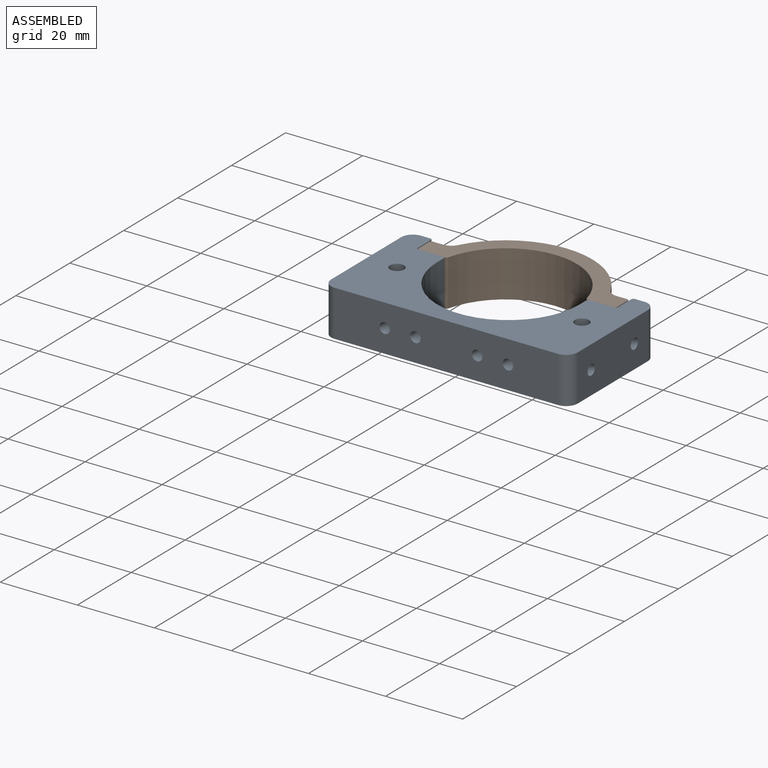
[diagram: assembled view]
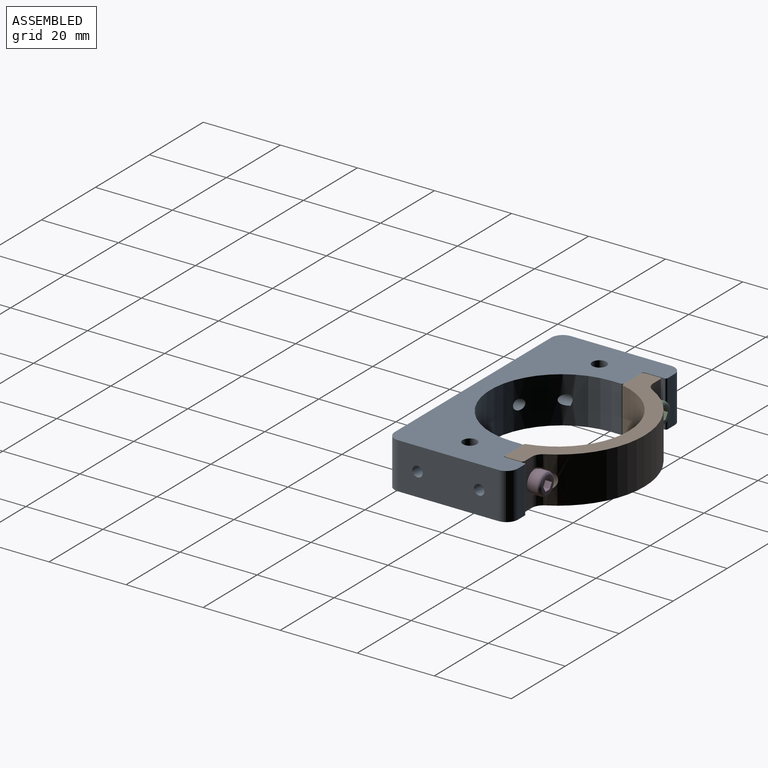
[diagram: assembled view, second angle]
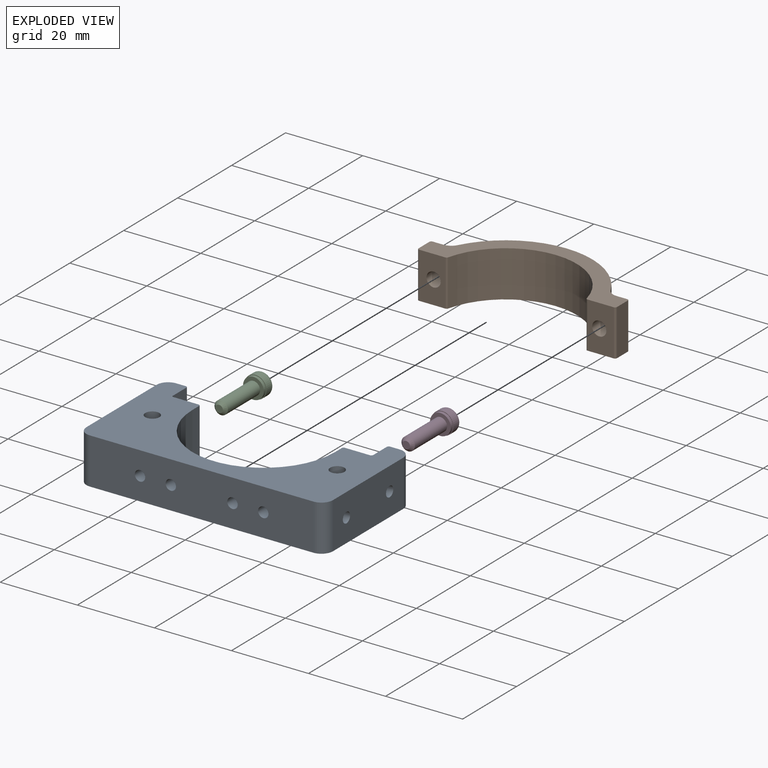
[diagram: exploded view]
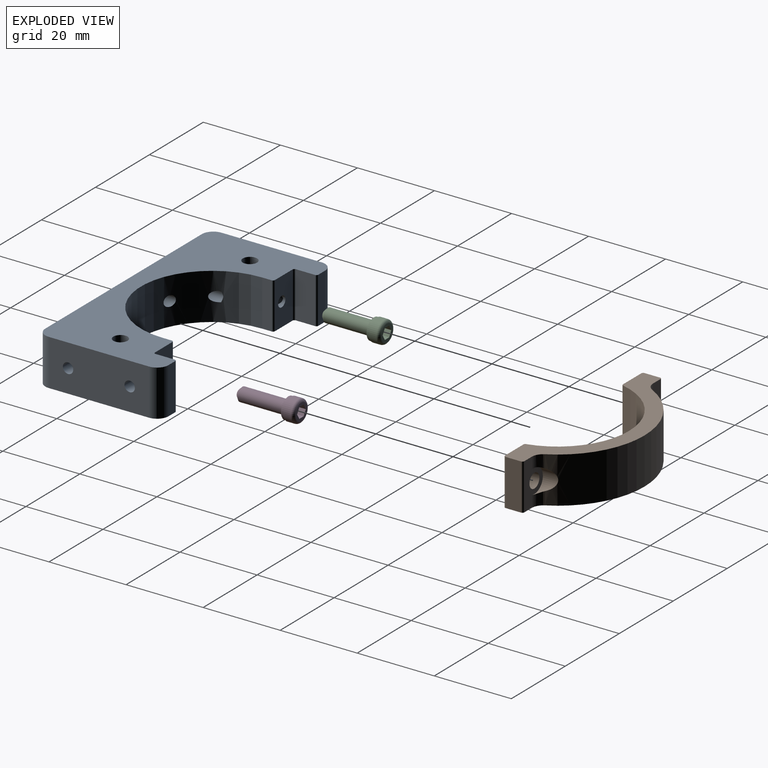
[diagram: exploded view, second angle]
ASSEMBLY  parts=4 mates=3
PART A: 42 faces, bbox 64x32x12 mm
  f0: cone r=1.35mm half-angle=67.5deg, axis (0,1,0), area 6.2mm2, adj f1
  f1: cylinder r=1.35mm len=12mm, axis (0,1,0), area 88mm2, adj f0,f11,f14,f33
  f2: cone r=1.35mm half-angle=67.5deg, axis (0,1,0), area 6.2mm2, adj f3
  f3: cylinder r=1.35mm len=12mm, axis (0,1,0), area 88mm2, adj f2,f8,f15,f30
  f4: cylinder r=1.35mm len=14mm, axis (0,-1,0), area 112.1mm2, adj f20,f23,f25
  f5: cylinder r=1.35mm len=6.32mm, axis (0,-1,0), area 53.7mm2, adj f20,f23
  f6: cylinder r=1.35mm len=6.32mm, axis (0,-1,0), area 53.7mm2, adj f20,f23
  f7: cylinder r=1.35mm len=14mm, axis (0,-1,0), area 112.1mm2, adj f20,f23,f24
  f8: cylinder r=1.35mm len=10.5mm, axis (1,0,0), area 81.9mm2, adj f3,f21
  f9: cylinder r=1.35mm len=10.5mm, axis (1,0,0), area 89.2mm2, adj f10,f21
  f10: cone r=1.35mm half-angle=67.5deg, axis (1,0,0), area 6.2mm2, adj f9
  f11: cylinder r=1.35mm len=10.5mm, axis (-1,0,0), area 81.9mm2, adj f1,f19
  f12: cylinder r=1.35mm len=10.5mm, axis (-1,0,0), area 89.2mm2, adj f13,f19
  f13: cone r=1.35mm half-angle=67.5deg, axis (-1,0,0), area 6.2mm2, adj f12
  f14: cylinder r=1.85mm len=12mm, axis (0,0,-1), area 133.1mm2, adj f1,f16,f17
  f15: cylinder r=1.85mm len=12mm, axis (0,0,-1), area 133.1mm2, adj f3,f16,f17
  f16: plane 64x32mm, normal (0,0,1), area 1058.1mm2, adj f14,f15,f18,f19,f20,f21,f22,f23
  f17: plane 64x32mm, normal (0,0,-1), area 1058.1mm2, adj f14,f15,f18,f19,f20,f21,f22,f23
  f18: plane 12x2.5mm, normal (0,1,0), area 30mm2, adj f16,f17,f29,f39
  f19: plane 26x12mm, normal (-1,0,0), area 300.5mm2, adj f11,f12,f16,f17,f28,f29
  f20: plane 58x12mm, normal (0,-1,0), area 673mm2, adj f4,f5,f6,f7,f16,f17,f26,f28
  f21: plane 26x12mm, normal (1,0,0), area 300.5mm2, adj f8,f9,f16,f17,f26,f27
  f22: plane 12x2.5mm, normal (0,1,0), area 30mm2, adj f16,f17,f27,f36
  f23: cylinder r=18.5mm len=37mm, axis (0,0,-1), area 671.1mm2, adj f4,f5,f6,f7,f16,f17,f24,f25
  f24: cone r=1.35mm half-angle=67.5deg, axis (0,-1,0), area 0mm2, adj f7,f23
  f25: cone r=1.35mm half-angle=67.5deg, axis (0,-1,0), area 0mm2, adj f4,f23
  f26: cylinder r=3mm len=12mm, axis (0,0,-1), area 56.5mm2, adj f16,f17,f20,f21
  f27: cylinder r=3mm len=12mm, axis (0,0,-1), area 56.5mm2, adj f16,f17,f21,f22
  f28: cylinder r=3mm len=12mm, axis (0,0,-1), area 56.5mm2, adj f16,f17,f19,f20
  f29: cylinder r=3mm len=12mm, axis (0,0,-1), area 56.5mm2, adj f16,f17,f18,f19
  f30: plane 12x6.5mm, normal (0,1,0), area 72.3mm2, adj f3,f16,f17,f37,f41
  f31: plane 12x5mm, normal (-1,0,0), area 60mm2, adj f16,f17,f36,f41
  f32: plane 12x5mm, normal (1,0,0), area 60mm2, adj f16,f17,f39,f40
  f33: plane 12x6.5mm, normal (0,1,0), area 72.3mm2, adj f1,f16,f17,f38,f40
  f34: plane 12x2.5mm, normal (1,0,0), area 30mm2, adj f16,f17,f23,f38
  f35: plane 12x2.5mm, normal (-1,0,0), area 30mm2, adj f16,f17,f23,f37
  f36: cylinder r=0.5mm len=12mm, axis (0,0,1), area 9.4mm2, adj f16,f17,f22,f31
  f37: cylinder r=0.5mm len=12mm, axis (0,0,1), area 9.4mm2, adj f16,f17,f30,f35
  f38: cylinder r=0.5mm len=12mm, axis (0,0,-1), area 9.4mm2, adj f16,f17,f33,f34
  f39: cylinder r=0.5mm len=12mm, axis (0,0,-1), area 9.4mm2, adj f16,f17,f18,f32
  f40: cylinder r=0.5mm len=12mm, axis (0,0,-1), area 9.4mm2, adj f16,f17,f32,f33
  f41: cylinder r=0.5mm len=12mm, axis (0,0,-1), area 9.4mm2, adj f16,f17,f30,f31
PART B: 24 faces, bbox 51.5x18.5x12 mm
  f0: cylinder r=3.12mm len=6.25mm, axis (0,1,0), area 23.6mm2, adj f8,f9,f11,f12
  f1: cylinder r=3.12mm len=6.25mm, axis (0,1,0), area 23.6mm2, adj f4,f10,f11,f13
  f2: cylinder r=1.85mm len=5mm, axis (0,1,0), area 58.1mm2, adj f8,f14
  f3: cylinder r=1.85mm len=5mm, axis (0,1,0), area 58.1mm2, adj f4,f17
  f4: plane 12x6.88mm, normal (0,1,0), area 43.7mm2, adj f1,f3,f6,f7,f10,f13,f23
  f5: cylinder r=18.5mm len=35.95mm, axis (0,0,-1), area 591.3mm2, adj f6,f7,f20,f21
  f6: plane 51.5x18.5mm, normal (0,0,1), area 268.9mm2, adj f4,f5,f8,f11,f12,f13,f14,f15
  f7: plane 51.5x18.5mm, normal (0,0,-1), area 268.9mm2, adj f4,f5,f8,f9,f10,f11,f14,f15
  f8: plane 12x6.88mm, normal (0,1,0), area 43.7mm2, adj f0,f2,f6,f7,f9,f12,f18
  f9: cylinder r=3mm len=3.34mm, axis (0,0,-1), area 9.9mm2, adj f0,f7,f8,f11
  f10: cylinder r=3mm len=3.34mm, axis (0,0,-1), area 9.9mm2, adj f1,f4,f7,f11
  f11: cylinder r=22.5mm len=39.71mm, axis (0,0,-1), area 562mm2, adj f0,f1,f6,f7,f9,f10,f12,f13
  f12: cylinder r=3mm len=3.34mm, axis (0,0,-1), area 9.9mm2, adj f0,f6,f8,f11
  f13: cylinder r=3mm len=3.34mm, axis (0,0,-1), area 9.9mm2, adj f1,f4,f6,f11
  f14: plane 12x6.79mm, normal (0,-1,0), area 70.7mm2, adj f2,f6,f7,f19,f20
  f15: plane 12x4mm, normal (1,0,0), area 48mm2, adj f6,f7,f18,f19
  f16: plane 12x4mm, normal (-1,0,0), area 48mm2, adj f6,f7,f22,f23
  f17: plane 12x6.79mm, normal (0,-1,0), area 70.7mm2, adj f3,f6,f7,f21,f22
  f18: cylinder r=0.5mm len=12mm, axis (0,0,-1), area 9.4mm2, adj f6,f7,f8,f15
  f19: cylinder r=0.5mm len=12mm, axis (0,0,-1), area 9.4mm2, adj f6,f7,f14,f15
  f20: cylinder r=0.5mm len=12mm, axis (0,0,-1), area 8mm2, adj f5,f6,f7,f14
  f21: cylinder r=0.5mm len=12mm, axis (0,0,-1), area 8mm2, adj f5,f6,f7,f17
  f22: cylinder r=0.5mm len=12mm, axis (0,0,1), area 9.4mm2, adj f6,f7,f16,f17
  f23: cylinder r=0.5mm len=12mm, axis (0,0,1), area 9.4mm2, adj f4,f6,f7,f16
PART C: 16 faces, bbox 6.2x16.1x6.2 mm
  f0: cone r=1.74mm half-angle=45deg, axis (0,1,0), area 9.2mm2, adj f1,f8
  f1: cylinder r=1.74mm len=11.94mm, axis (0,-1,0), area 130.5mm2, adj f0,f7
  f2: cylinder r=2.69mm len=5.38mm, axis (0,-1,0), area 12.9mm2, adj f6,f7
  f3: cylinder r=2.86mm len=5.72mm, axis (0,-1,0), area 34.2mm2, adj f4,f6
  f4: torus R=2.1mm, axis (0,-1,0), area 19.4mm2, adj f3,f5
  f5: plane 4.19x4.19mm, normal (0,1,0), area 7.1mm2, adj f4,f9,f10,f11,f12,f13,f14
  f6: plane 5.72x5.72mm, normal (0,-1,0), area 2.9mm2, adj f2,f3
  f7: plane 5.38x5.38mm, normal (0,-1,0), area 13.3mm2, adj f1,f2
  f8: plane 1.96x1.96mm, normal (0,-1,0), area 3mm2, adj f0
  f9: plane 2.03x1.39mm, normal (-0.5,0,0.87), area 3.3mm2, adj f5,f10,f14,f15
  f10: plane 2.03x1.6mm, normal (-1,0,0), area 3.3mm2, adj f5,f9,f11,f15
  f11: plane 2.03x1.39mm, normal (-0.5,0,-0.87), area 3.3mm2, adj f5,f10,f12,f15
  f12: plane 2.03x1.39mm, normal (0.5,0,-0.87), area 3.3mm2, adj f5,f11,f13,f15
  f13: plane 2.03x1.6mm, normal (1,0,0), area 3.3mm2, adj f5,f12,f14,f15
  f14: plane 2.03x1.39mm, normal (0.5,0,0.87), area 3.3mm2, adj f5,f9,f13,f15
  f15: plane 3.21x2.78mm, normal (0,1,0), area 6.7mm2, adj f9,f10,f11,f12,f13,f14
PART D: same geometry as C
PLACE A rot(axis=(0,-1,0),180deg) t=(-1.53,1.97,0)mm
PLACE B t=(-1.53,0.97,0)mm
PLACE C rot(axis=(0,-1,0),90deg) t=(-23.03,-2.73,0)mm
PLACE D rot(axis=(0,-1,0),90deg) t=(19.97,-2.73,0)mm
MATE fastened B.f1 <-> A.f2  axis (0,-1,0) through (-23.03,4.97,0)mm
MATE fastened D.f4 <-> B.f0  axis (0,-1,0) through (19.97,9.97,0)mm
MATE fastened C.f4 <-> B.f1  axis (0,-1,0) through (-23.03,9.97,0)mm
